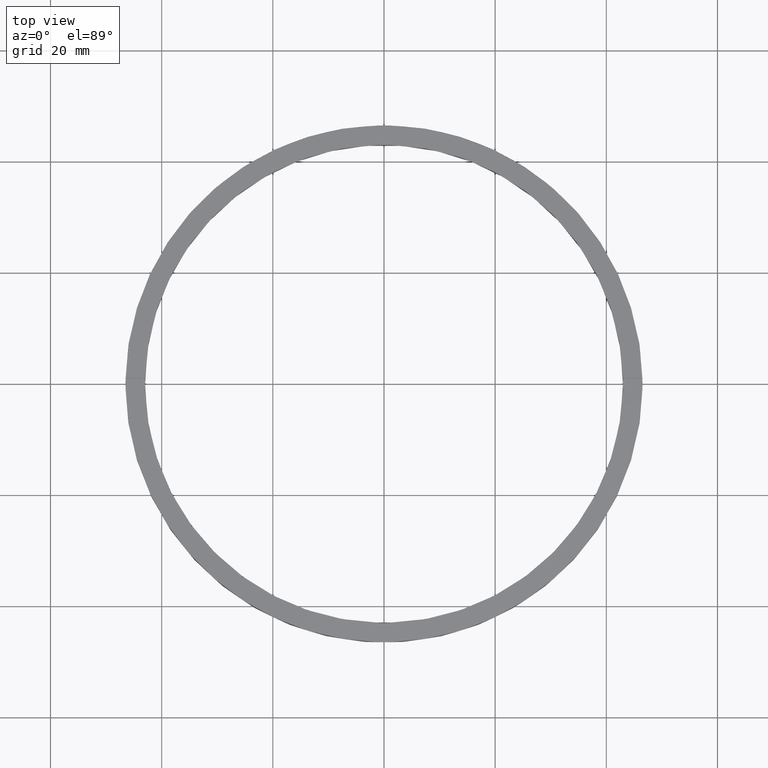
[diagram: clean part render]
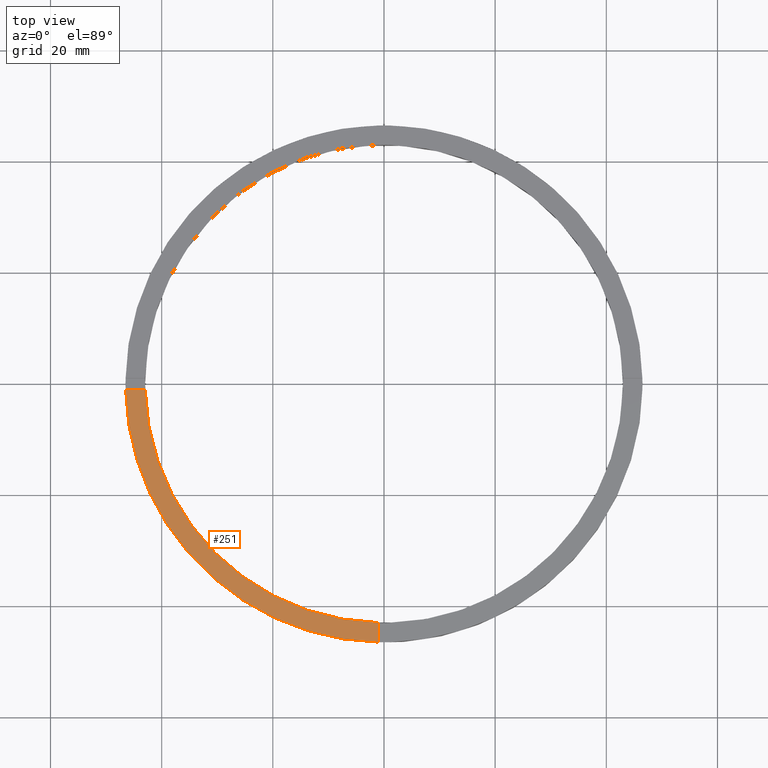
[diagram: same view with one face highlighted and labeled with its STEP entity id]
A machine part, top view. The second image highlights one B-rep face of the part: STEP entity #251.
In plain terms, the highlighted planar face has unit normal (0, 0, 1).
Its self-contained STEP definition (entity closure, byte-faithful):
#33 = EDGE_CURVE ( 'NONE', #198, #627, #518, .T. ) ;
#42 = CARTESIAN_POINT ( 'NONE',  ( -46.48924606831132422, -1.000000000000030420, 4.500000000000000000 ) ) ;
#52 = PLANE ( 'NONE',  #586 ) ;
#58 = CARTESIAN_POINT ( 'NONE',  ( 0.000000000000000000, 0.000000000000000000, 4.500000000000000000 ) ) ;
#98 = VERTEX_POINT ( 'NONE', #527 ) ;
#114 = DIRECTION ( 'NONE',  ( 1.301042606982605074E-16, -1.000000000000000000, 0.000000000000000000 ) ) ;
#174 = AXIS2_PLACEMENT_3D ( 'NONE', #451, #289, #469 ) ;
#194 = CIRCLE ( 'NONE', #174, 46.50000000000000000 ) ;
#198 = VERTEX_POINT ( 'NONE', #632 ) ;
#199 = VECTOR ( 'NONE', #396, 1000.000000000000000 ) ;
#205 = CIRCLE ( 'NONE', #643, 43.00000000000000000 ) ;
#240 = DIRECTION ( 'NONE',  ( 0.000000000000000000, 0.000000000000000000, 1.000000000000000000 ) ) ;
#251 = ADVANCED_FACE ( 'NONE', ( #516 ), #52, .T. ) ;
#278 = CARTESIAN_POINT ( 'NONE',  ( 0.000000000000000000, 0.000000000000000000, 4.500000000000000000 ) ) ;
#289 = DIRECTION ( 'NONE',  ( 0.000000000000000000, 0.000000000000000000, 1.000000000000000000 ) ) ;
#297 = DIRECTION ( 'NONE',  ( 1.000000000000000000, 0.000000000000000000, -0.000000000000000000 ) ) ;
#340 = CARTESIAN_POINT ( 'NONE',  ( -36.50000000000018474, -1.000000000000028422, 4.500000000000000000 ) ) ;
#387 = DIRECTION ( 'NONE',  ( 0.000000000000000000, 0.000000000000000000, 1.000000000000000000 ) ) ;
#396 = DIRECTION ( 'NONE',  ( 1.000000000000000000, 1.951563910473907735E-16, -0.000000000000000000 ) ) ;
#417 = CARTESIAN_POINT ( 'NONE',  ( -1.000000000000158984, -36.50000000000017764, 4.500000000000000000 ) ) ;
#434 = ORIENTED_EDGE ( 'NONE', *, *, #731, .T. ) ;
#451 = CARTESIAN_POINT ( 'NONE',  ( 0.000000000000000000, 0.000000000000000000, 4.500000000000000000 ) ) ;
#458 = LINE ( 'NONE', #340, #199 ) ;
#469 = DIRECTION ( 'NONE',  ( 1.000000000000000000, 0.000000000000000000, 0.000000000000000000 ) ) ;
#510 = VECTOR ( 'NONE', #114, 1000.000000000000000 ) ;
#516 = FACE_OUTER_BOUND ( 'NONE', #673, .T. ) ;
#518 = LINE ( 'NONE', #417, #510 ) ;
#527 = CARTESIAN_POINT ( 'NONE',  ( -42.98837052040935447, -1.000000000000029754, 4.500000000000000000 ) ) ;
#586 = AXIS2_PLACEMENT_3D ( 'NONE', #58, #240, #297 ) ;
#589 = EDGE_CURVE ( 'NONE', #98, #198, #205, .T. ) ;
#627 = VERTEX_POINT ( 'NONE', #710 ) ;
#632 = CARTESIAN_POINT ( 'NONE',  ( -1.000000000000158096, -42.98837052040934736, 4.500000000000000000 ) ) ;
#633 = ORIENTED_EDGE ( 'NONE', *, *, #589, .F. ) ;
#643 = AXIS2_PLACEMENT_3D ( 'NONE', #278, #387, #703 ) ;
#673 = EDGE_LOOP ( 'NONE', ( #696, #633, #740, #434 ) ) ;
#696 = ORIENTED_EDGE ( 'NONE', *, *, #33, .F. ) ;
#703 = DIRECTION ( 'NONE',  ( 1.000000000000000000, 0.000000000000000000, 0.000000000000000000 ) ) ;
#710 = CARTESIAN_POINT ( 'NONE',  ( -1.000000000000157652, -46.48924606831132422, 4.500000000000000000 ) ) ;
#727 = VERTEX_POINT ( 'NONE', #42 ) ;
#731 = EDGE_CURVE ( 'NONE', #727, #627, #194, .T. ) ;
#735 = EDGE_CURVE ( 'NONE', #727, #98, #458, .T. ) ;
#740 = ORIENTED_EDGE ( 'NONE', *, *, #735, .F. ) ;